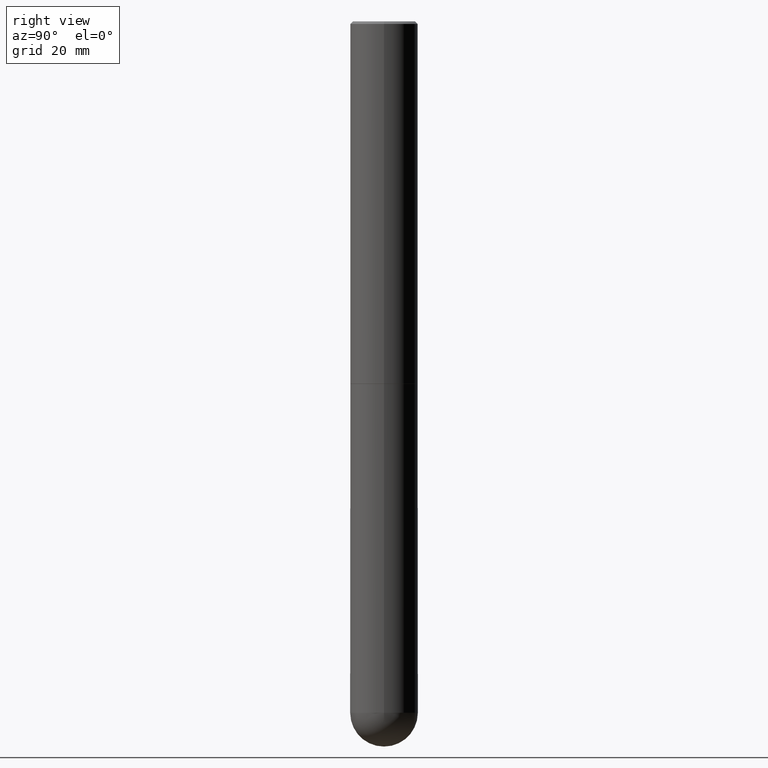
[diagram: clean part render]
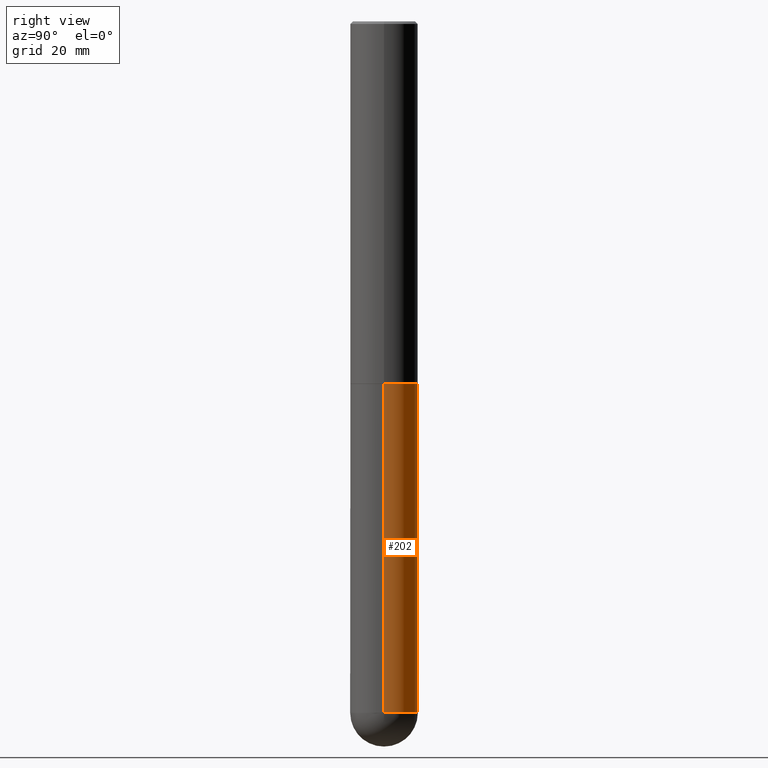
[diagram: same view with one face highlighted and labeled with its STEP entity id]
A machine part, right view. The second image highlights one B-rep face of the part: STEP entity #202.
In plain terms, the highlighted cylindrical surface (edge-blend (fillet) strip) has radius 7.0002 mm, axis along (-0, 0, 1).
Its self-contained STEP definition (entity closure, byte-faithful):
#5 = CIRCLE ( 'NONE', #364, 0.2756000000000000116 ) ;
#22 = DIRECTION ( 'NONE',  ( 1.000000000000000000, -6.982962677686264344E-15, 0.000000000000000000 ) ) ;
#36 = CIRCLE ( 'NONE', #394, 0.2756000000000000671 ) ;
#48 = AXIS2_PLACEMENT_3D ( 'NONE', #185, #311, #22 ) ;
#59 = VERTEX_POINT ( 'NONE', #73 ) ;
#70 = ORIENTED_EDGE ( 'NONE', *, *, #322, .F. ) ;
#73 = CARTESIAN_POINT ( 'NONE',  ( 1.924504513970471427E-15, 0.2755999999999801942, -5.629900000000001015 ) ) ;
#78 = DIRECTION ( 'NONE',  ( -2.445468806185136597E-29, 3.491481338843145583E-15, 1.000000000000000000 ) ) ;
#104 = EDGE_CURVE ( 'NONE', #211, #148, #109, .T. ) ;
#109 = LINE ( 'NONE', #324, #407 ) ;
#131 = CIRCLE ( 'NONE', #48, 0.2756000000000000671 ) ;
#137 = EDGE_CURVE ( 'NONE', #229, #148, #5, .T. ) ;
#148 = VERTEX_POINT ( 'NONE', #232 ) ;
#178 = FACE_OUTER_BOUND ( 'NONE', #374, .T. ) ;
#185 = CARTESIAN_POINT ( 'NONE',  ( 1.376774483194169922E-28, -1.965669078955302449E-14, -5.629900000000000126 ) ) ;
#187 = EDGE_CURVE ( 'NONE', #286, #59, #131, .T. ) ;
#189 = ORIENTED_EDGE ( 'NONE', *, *, #213, .T. ) ;
#198 = LINE ( 'NONE', #320, #385 ) ;
#202 = ADVANCED_FACE ( 'NONE', ( #178 ), #273, .T. ) ;
#211 = VERTEX_POINT ( 'NONE', #243 ) ;
#213 = EDGE_CURVE ( 'NONE', #59, #211, #36, .T. ) ;
#227 = CARTESIAN_POINT ( 'NONE',  ( 0.2756000000000000671, -1.690749838334792865E-14, -5.629900000000000126 ) ) ;
#229 = VERTEX_POINT ( 'NONE', #342 ) ;
#232 = CARTESIAN_POINT ( 'NONE',  ( -0.2756000000000000116, -1.302473808962275237E-14, -2.952700000000000102 ) ) ;
#238 = DIRECTION ( 'NONE',  ( -2.445468806185136597E-29, 3.491481338843145583E-15, 1.000000000000000000 ) ) ;
#243 = CARTESIAN_POINT ( 'NONE',  ( -0.2756000000000000671, -1.302473808962275553E-14, -5.629900000000000126 ) ) ;
#244 = ORIENTED_EDGE ( 'NONE', *, *, #187, .T. ) ;
#273 = CYLINDRICAL_SURFACE ( 'NONE', #293, 0.2756000000000000671 ) ;
#282 = ORIENTED_EDGE ( 'NONE', *, *, #104, .T. ) ;
#285 = DIRECTION ( 'NONE',  ( -2.445468806185136877E-29, 3.491481338843145188E-15, 1.000000000000000000 ) ) ;
#286 = VERTEX_POINT ( 'NONE', #227 ) ;
#293 = AXIS2_PLACEMENT_3D ( 'NONE', #345, #238, #363 ) ;
#295 = DIRECTION ( 'NONE',  ( -2.445468806185136877E-29, 3.491481338843145188E-15, 1.000000000000000000 ) ) ;
#306 = CARTESIAN_POINT ( 'NONE',  ( 1.376774483194169922E-28, -1.965669078955302449E-14, -5.629900000000000126 ) ) ;
#311 = DIRECTION ( 'NONE',  ( -2.445468806185136597E-29, 3.491481338843145583E-15, 1.000000000000000000 ) ) ;
#320 = CARTESIAN_POINT ( 'NONE',  ( 0.2756000000000000671, -1.924504513970335743E-15, 1.343874319409360268E-29 ) ) ;
#322 = EDGE_CURVE ( 'NONE', #286, #229, #198, .T. ) ;
#324 = CARTESIAN_POINT ( 'NONE',  ( -0.2756000000000000671, 1.958255779754836589E-15, -1.355658510874252287E-29 ) ) ;
#342 = CARTESIAN_POINT ( 'NONE',  ( 0.2756000000000000116, -1.223380146317248997E-14, -2.952700000000000102 ) ) ;
#345 = CARTESIAN_POINT ( 'NONE',  ( 0.000000000000000000, 0.000000000000000000, 0.000000000000000000 ) ) ;
#357 = CARTESIAN_POINT ( 'NONE',  ( 7.220735744022852519E-29, -1.030929694920215502E-14, -2.952700000000000102 ) ) ;
#363 = DIRECTION ( 'NONE',  ( 1.000000000000000000, -6.982962677686267499E-15, 4.876176775795935793E-29 ) ) ;
#364 = AXIS2_PLACEMENT_3D ( 'NONE', #357, #78, #392 ) ;
#373 = DIRECTION ( 'NONE',  ( -2.445468806185136597E-29, 3.491481338843145583E-15, 1.000000000000000000 ) ) ;
#374 = EDGE_LOOP ( 'NONE', ( #189, #282, #401, #70, #244 ) ) ;
#385 = VECTOR ( 'NONE', #285, 39.37007874015748143 ) ;
#392 = DIRECTION ( 'NONE',  ( 1.000000000000000000, -6.982962677686265922E-15, 0.000000000000000000 ) ) ;
#394 = AXIS2_PLACEMENT_3D ( 'NONE', #306, #373, #405 ) ;
#401 = ORIENTED_EDGE ( 'NONE', *, *, #137, .F. ) ;
#405 = DIRECTION ( 'NONE',  ( 1.000000000000000000, -6.982962677686264344E-15, 0.000000000000000000 ) ) ;
#407 = VECTOR ( 'NONE', #295, 39.37007874015748143 ) ;